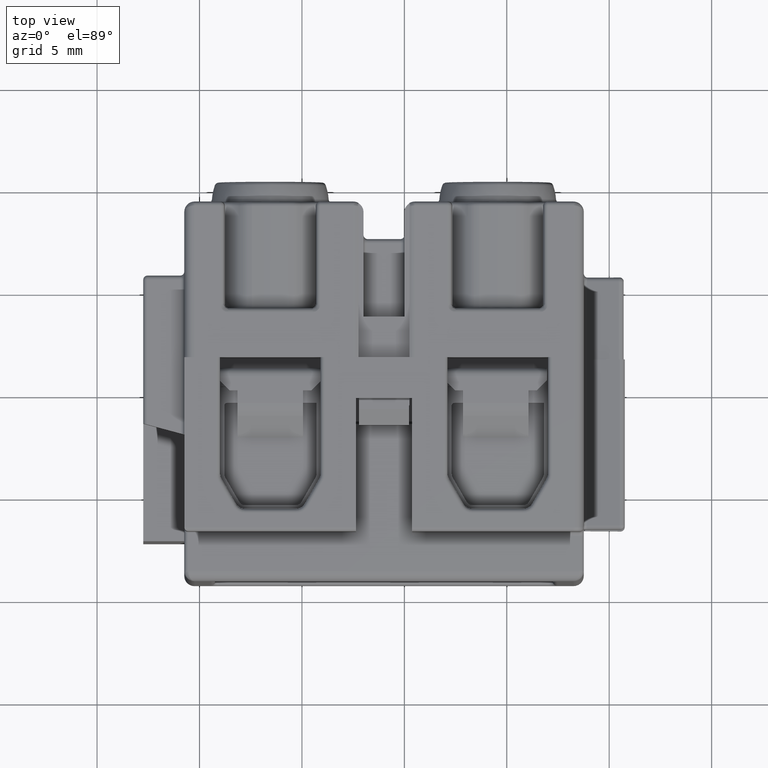
[diagram: clean part render]
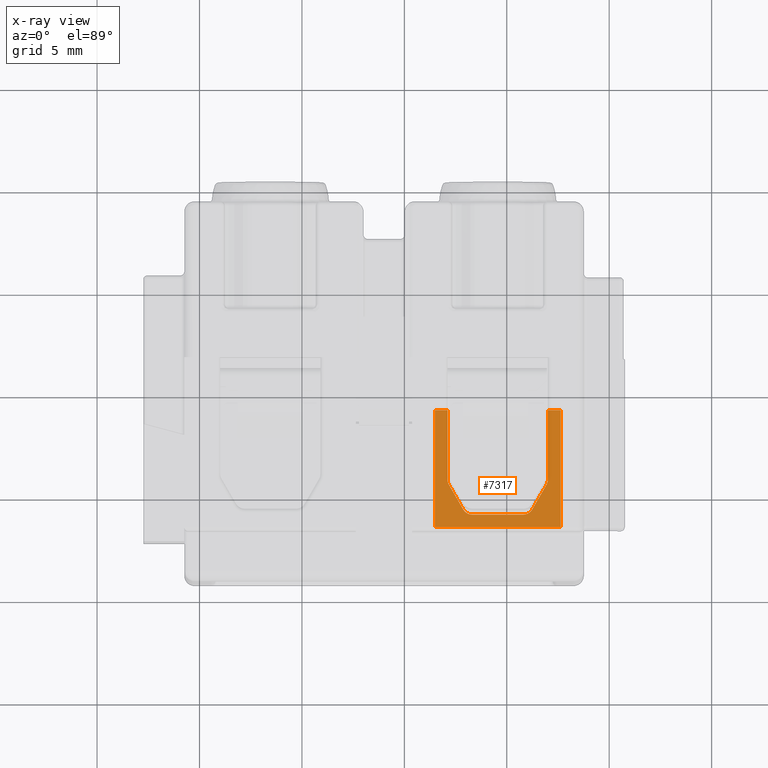
[diagram: x-ray — body ghosted, one internal face saturated and labeled with its STEP entity id]
A machine part, top view, then the same camera in x-ray: the body is ghosted and one INTERNAL B-rep face — a face not visible from any outside direction — is saturated and labeled: STEP entity #7317.
In plain terms, the highlighted planar face has unit normal (0, 0, -1).
Its self-contained STEP definition (entity closure, byte-faithful):
#435 = CARTESIAN_POINT ( 'NONE',  ( 16.24136299102190200, 29.49973753280849900, -17.67283801961509900 ) ) ;
#2419 = ORIENTED_EDGE ( 'NONE', *, *, #32103, .T. ) ;
#2421 = ORIENTED_EDGE ( 'NONE', *, *, #32074, .T. ) ;
#2433 = ORIENTED_EDGE ( 'NONE', *, *, #12083, .T. ) ;
#2450 = ORIENTED_EDGE ( 'NONE', *, *, #7440, .T. ) ;
#2466 = ORIENTED_EDGE ( 'NONE', *, *, #32177, .T. ) ;
#3912 = ORIENTED_EDGE ( 'NONE', *, *, #32055, .F. ) ;
#3914 = ORIENTED_EDGE ( 'NONE', *, *, #12024, .T. ) ;
#3920 = ORIENTED_EDGE ( 'NONE', *, *, #7465, .F. ) ;
#3921 = ORIENTED_EDGE ( 'NONE', *, *, #32061, .T. ) ;
#3927 = ORIENTED_EDGE ( 'NONE', *, *, #32147, .F. ) ;
#3935 = ORIENTED_EDGE ( 'NONE', *, *, #32098, .F. ) ;
#3936 = ORIENTED_EDGE ( 'NONE', *, *, #32173, .T. ) ;
#3942 = ORIENTED_EDGE ( 'NONE', *, *, #32128, .T. ) ;
#3946 = ORIENTED_EDGE ( 'NONE', *, *, #11996, .T. ) ;
#3964 = CARTESIAN_POINT ( 'NONE',  ( 16.93956807178004800, 30.70906420678435100, -17.67283801961509900 ) ) ;
#3983 = CARTESIAN_POINT ( 'NONE',  ( 12.17354266799561900, 30.70906420678435100, -17.67283801961509900 ) ) ;
#4292 = EDGE_LOOP ( 'NONE', ( #3927, #3942, #3921, #2419, #3935, #2421, #2450, #3920, #3946, #3914, #2433, #3912, #2466, #3936 ) ) ;
#5372 = VECTOR ( 'NONE', #30787, 1000.000000000000000 ) ;
#5403 = VECTOR ( 'NONE', #30804, 1000.000000000000000 ) ;
#5704 = AXIS2_PLACEMENT_3D ( 'NONE', #30244, #30294, #30258 ) ;
#5901 = VERTEX_POINT ( 'NONE', #3983 ) ;
#5933 = VERTEX_POINT ( 'NONE', #3964 ) ;
#5953 = VERTEX_POINT ( 'NONE', #435 ) ;
#5964 = VERTEX_POINT ( 'NONE', #8259 ) ;
#6001 = VERTEX_POINT ( 'NONE', #8251 ) ;
#6007 = VERTEX_POINT ( 'NONE', #8270 ) ;
#6010 = VERTEX_POINT ( 'NONE', #8286 ) ;
#6054 = VERTEX_POINT ( 'NONE', #8321 ) ;
#7317 = ADVANCED_FACE ( 'NONE', ( #30276 ), #30268, .F. ) ;
#7440 = EDGE_CURVE ( 'NONE', #20968, #20920, #30703, .T. ) ;
#7465 = EDGE_CURVE ( 'NONE', #20715, #20920, #30801, .T. ) ;
#8251 = CARTESIAN_POINT ( 'NONE',  ( 12.87174774875376000, 29.49973753280849900, -17.67283801961509900 ) ) ;
#8259 = CARTESIAN_POINT ( 'NONE',  ( 15.80835028912970200, 29.24973753280849900, -17.67283801961509900 ) ) ;
#8270 = CARTESIAN_POINT ( 'NONE',  ( 13.30476045064600000, 29.24973753280849900, -17.67283801961509900 ) ) ;
#8286 = CARTESIAN_POINT ( 'NONE',  ( 17.00655536988785200, 34.34973753280829800, -17.67283801961509900 ) ) ;
#8321 = CARTESIAN_POINT ( 'NONE',  ( 17.00655536988785200, 30.95906420678435100, -17.67283801961509900 ) ) ;
#10409 = CARTESIAN_POINT ( 'NONE',  ( 11.48155536988784000, 34.34973753280829800, -17.67283801961509900 ) ) ;
#10421 = CARTESIAN_POINT ( 'NONE',  ( 11.48155536988784000, 28.64973753280830200, -17.67283801961509900 ) ) ;
#10438 = CARTESIAN_POINT ( 'NONE',  ( 17.63155536988784900, 28.64973753280830200, -17.67283801961509900 ) ) ;
#10508 = CARTESIAN_POINT ( 'NONE',  ( 17.63155536988784900, 34.34973753280829800, -17.67283801961509900 ) ) ;
#10641 = CARTESIAN_POINT ( 'NONE',  ( 12.10655536988784100, 34.34973753280829800, -17.67283801961509900 ) ) ;
#10707 = CARTESIAN_POINT ( 'NONE',  ( 12.10655536988784100, 30.95906420678435100, -17.67283801961509900 ) ) ;
#11996 = EDGE_CURVE ( 'NONE', #20715, #20696, #22517, .T. ) ;
#12024 = EDGE_CURVE ( 'NONE', #20696, #20681, #22746, .T. ) ;
#12083 = EDGE_CURVE ( 'NONE', #20681, #20778, #23189, .T. ) ;
#17190 = VECTOR ( 'NONE', #22663, 1000.000000000000000 ) ;
#17279 = VECTOR ( 'NONE', #23248, 1000.000000000000000 ) ;
#18689 = DIRECTION ( 'NONE',  ( -1.000000000000000000, 1.389774407042533900E-015, 0.0000000000000000000 ) ) ;
#18697 = LINE ( 'NONE', #18716, #28769 ) ;
#18716 = CARTESIAN_POINT ( 'NONE',  ( 18.09459322071889900, 29.24973753280849900, -17.67283801961509900 ) ) ;
#18731 = DIRECTION ( 'NONE',  ( 0.0000000000000000000, 0.0000000000000000000, -1.000000000000000000 ) ) ;
#18756 = CARTESIAN_POINT ( 'NONE',  ( 12.60655536988784100, 30.95906420678435100, -17.67283801961509900 ) ) ;
#18774 = DIRECTION ( 'NONE',  ( -1.000000000000000000, 0.0000000000000000000, 0.0000000000000000000 ) ) ;
#18828 = DIRECTION ( 'NONE',  ( 0.5000000000000011100, -0.8660254037844379300, 0.0000000000000000000 ) ) ;
#18838 = DIRECTION ( 'NONE',  ( -1.000000000000000000, 0.0000000000000000000, 0.0000000000000000000 ) ) ;
#18845 = CARTESIAN_POINT ( 'NONE',  ( 12.10655536988782000, 30.82508961056879900, -17.67283801961509900 ) ) ;
#18848 = CARTESIAN_POINT ( 'NONE',  ( 13.30476045064600000, 29.74973753280849900, -17.67283801961509900 ) ) ;
#18862 = DIRECTION ( 'NONE',  ( 0.0000000000000000000, 0.0000000000000000000, -1.000000000000000000 ) ) ;
#18867 = LINE ( 'NONE', #18845, #28862 ) ;
#18949 = DIRECTION ( 'NONE',  ( -1.000000000000000000, 0.0000000000000000000, 0.0000000000000000000 ) ) ;
#18956 = DIRECTION ( 'NONE',  ( 0.0000000000000000000, 0.0000000000000000000, -1.000000000000000000 ) ) ;
#18963 = CARTESIAN_POINT ( 'NONE',  ( 15.80835028912970200, 29.74973753280849900, -17.67283801961509900 ) ) ;
#18993 = DIRECTION ( 'NONE',  ( 0.5000000000000011100, 0.8660254037844379300, 0.0000000000000000000 ) ) ;
#19007 = LINE ( 'NONE', #19010, #28927 ) ;
#19010 = CARTESIAN_POINT ( 'NONE',  ( 17.00655536988785200, 30.82508961056879900, -17.67283801961509900 ) ) ;
#19056 = CARTESIAN_POINT ( 'NONE',  ( 17.00655536988785200, 28.82739239623605000, -17.67283801961509900 ) ) ;
#19072 = DIRECTION ( 'NONE',  ( 0.0000000000000000000, -1.000000000000000000, 0.0000000000000000000 ) ) ;
#19077 = DIRECTION ( 'NONE',  ( 0.0000000000000000000, 0.0000000000000000000, -1.000000000000000000 ) ) ;
#19081 = LINE ( 'NONE', #19056, #28972 ) ;
#19090 = DIRECTION ( 'NONE',  ( -1.000000000000000000, 0.0000000000000000000, 0.0000000000000000000 ) ) ;
#19096 = CARTESIAN_POINT ( 'NONE',  ( 16.50655536988785200, 30.95906420678435100, -17.67283801961509900 ) ) ;
#20681 = VERTEX_POINT ( 'NONE', #10438 ) ;
#20696 = VERTEX_POINT ( 'NONE', #10421 ) ;
#20715 = VERTEX_POINT ( 'NONE', #10409 ) ;
#20778 = VERTEX_POINT ( 'NONE', #10508 ) ;
#20920 = VERTEX_POINT ( 'NONE', #10641 ) ;
#20968 = VERTEX_POINT ( 'NONE', #10707 ) ;
#22470 = CARTESIAN_POINT ( 'NONE',  ( 11.48155536988784000, 28.24973753280830000, -17.67283801961509900 ) ) ;
#22492 = DIRECTION ( 'NONE',  ( 0.0000000000000000000, -1.000000000000000000, 0.0000000000000000000 ) ) ;
#22517 = LINE ( 'NONE', #22470, #24981 ) ;
#22663 = DIRECTION ( 'NONE',  ( 1.000000000000000000, 0.0000000000000000000, 0.0000000000000000000 ) ) ;
#22687 = CARTESIAN_POINT ( 'NONE',  ( 17.55655536988785000, 28.64973753280830200, -17.67283801961509900 ) ) ;
#22746 = LINE ( 'NONE', #22687, #17190 ) ;
#23189 = LINE ( 'NONE', #23268, #17279 ) ;
#23248 = DIRECTION ( 'NONE',  ( 0.0000000000000000000, 1.000000000000000000, 0.0000000000000000000 ) ) ;
#23268 = CARTESIAN_POINT ( 'NONE',  ( 17.63155536988784900, 28.24973753280830000, -17.67283801961509900 ) ) ;
#24981 = VECTOR ( 'NONE', #22492, 1000.000000000000000 ) ;
#28712 = VECTOR ( 'NONE', #29837, 1000.000000000000000 ) ;
#28743 = AXIS2_PLACEMENT_3D ( 'NONE', #18756, #18731, #18774 ) ;
#28769 = VECTOR ( 'NONE', #18689, 1000.000000000000000 ) ;
#28795 = CIRCLE ( 'NONE', #28743, 0.5000000000000004400 ) ;
#28822 = CIRCLE ( 'NONE', #28919, 0.5000000000000004400 ) ;
#28846 = CIRCLE ( 'NONE', #28903, 0.5000000000000004400 ) ;
#28862 = VECTOR ( 'NONE', #18828, 1000.000000000000100 ) ;
#28903 = AXIS2_PLACEMENT_3D ( 'NONE', #18963, #18956, #18949 ) ;
#28919 = AXIS2_PLACEMENT_3D ( 'NONE', #18848, #18862, #18838 ) ;
#28927 = VECTOR ( 'NONE', #18993, 1000.000000000000100 ) ;
#28941 = CIRCLE ( 'NONE', #28959, 0.5000000000000004400 ) ;
#28959 = AXIS2_PLACEMENT_3D ( 'NONE', #19096, #19077, #19090 ) ;
#28972 = VECTOR ( 'NONE', #19072, 1000.000000000000000 ) ;
#29686 = CARTESIAN_POINT ( 'NONE',  ( -5.828940109788959500, 34.34973753280829800, -17.67283801961509900 ) ) ;
#29837 = DIRECTION ( 'NONE',  ( 1.000000000000000000, 0.0000000000000000000, 0.0000000000000000000 ) ) ;
#30047 = LINE ( 'NONE', #29686, #28712 ) ;
#30244 = CARTESIAN_POINT ( 'NONE',  ( 18.09459322071889900, 27.69467194569419600, -17.67283801961509900 ) ) ;
#30258 = DIRECTION ( 'NONE',  ( -1.000000000000000000, 0.0000000000000000000, 0.0000000000000000000 ) ) ;
#30268 = PLANE ( 'NONE',  #5704 ) ;
#30276 = FACE_OUTER_BOUND ( 'NONE', #4292, .T. ) ;
#30294 = DIRECTION ( 'NONE',  ( 0.0000000000000000000, 0.0000000000000000000, -1.000000000000000000 ) ) ;
#30703 = LINE ( 'NONE', #30717, #5372 ) ;
#30717 = CARTESIAN_POINT ( 'NONE',  ( 12.10655536988784100, 36.64973753280830200, -17.67283801961509900 ) ) ;
#30787 = DIRECTION ( 'NONE',  ( 4.435302829752070300E-016, 1.000000000000000000, 0.0000000000000000000 ) ) ;
#30795 = CARTESIAN_POINT ( 'NONE',  ( -5.828940109788959500, 34.34973753280829800, -17.67283801961509900 ) ) ;
#30801 = LINE ( 'NONE', #30795, #5403 ) ;
#30804 = DIRECTION ( 'NONE',  ( 1.000000000000000000, 0.0000000000000000000, 0.0000000000000000000 ) ) ;
#32055 = EDGE_CURVE ( 'NONE', #6010, #20778, #30047, .T. ) ;
#32061 = EDGE_CURVE ( 'NONE', #5964, #6007, #18697, .T. ) ;
#32074 = EDGE_CURVE ( 'NONE', #5901, #20968, #28795, .T. ) ;
#32098 = EDGE_CURVE ( 'NONE', #5901, #6001, #18867, .T. ) ;
#32103 = EDGE_CURVE ( 'NONE', #6007, #6001, #28822, .T. ) ;
#32128 = EDGE_CURVE ( 'NONE', #5953, #5964, #28846, .T. ) ;
#32147 = EDGE_CURVE ( 'NONE', #5953, #5933, #19007, .T. ) ;
#32173 = EDGE_CURVE ( 'NONE', #6054, #5933, #28941, .T. ) ;
#32177 = EDGE_CURVE ( 'NONE', #6010, #6054, #19081, .T. ) ;